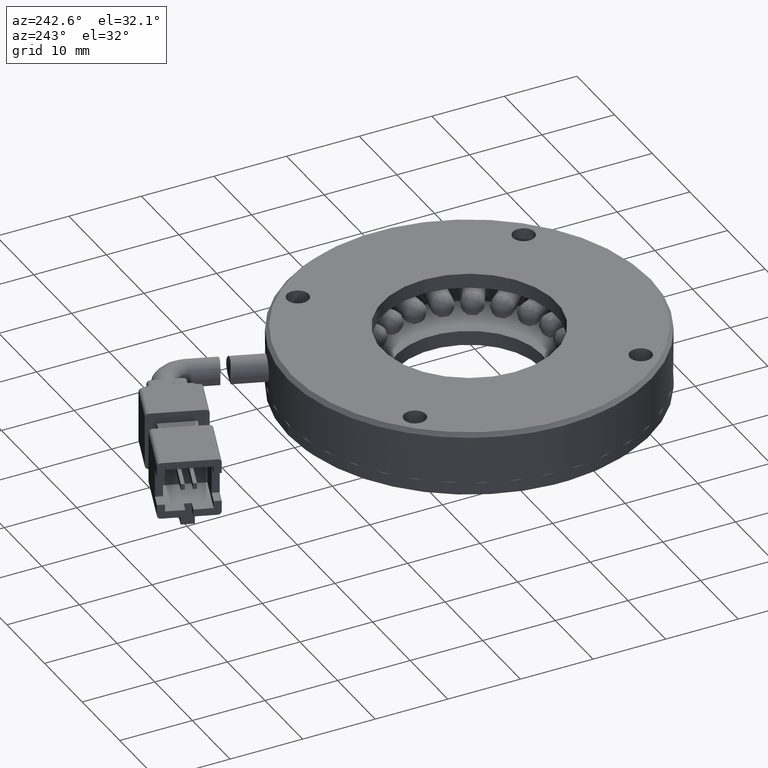
[diagram: clean part render]
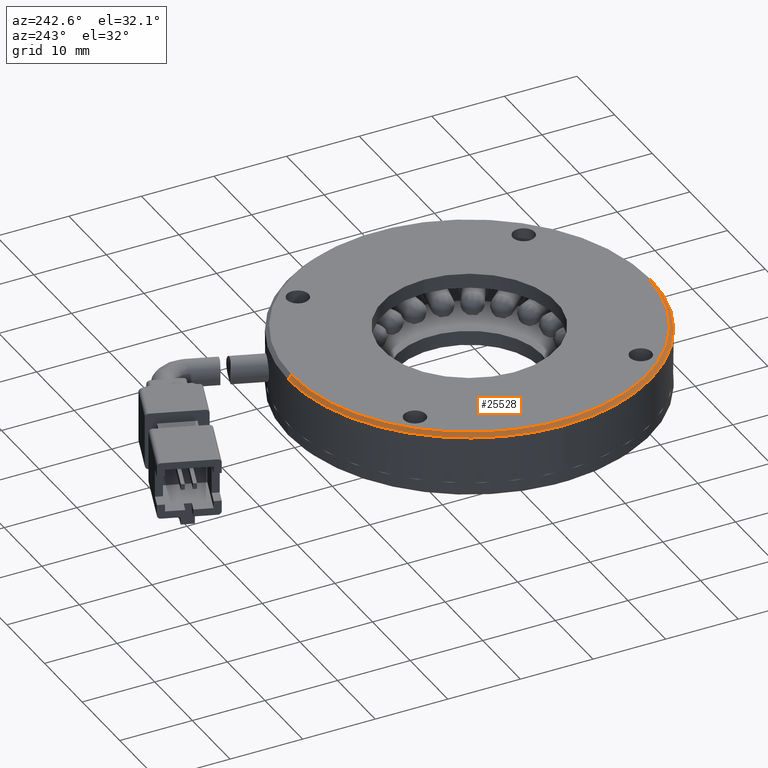
[diagram: same view with one face highlighted and labeled with its STEP entity id]
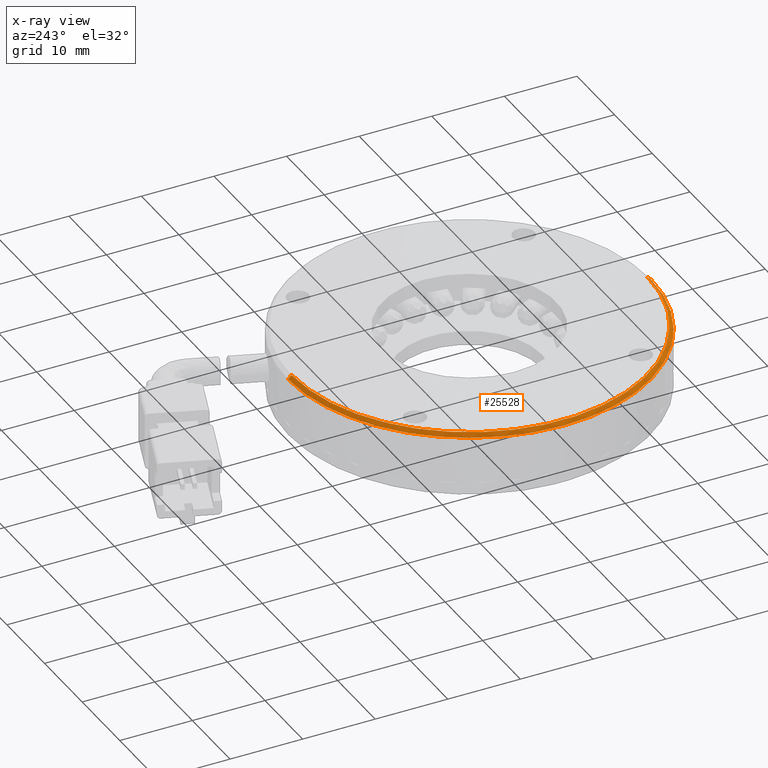
[diagram: x-ray of the same camera — body ghosted, the highlighted face saturated]
A machine part, auxiliary view. The second image highlights one B-rep face of the part: STEP entity #25528.
The next image is the same camera in x-ray: the body ghosted, the highlighted face saturated — about 0% of this face is hidden behind the body in this view.
In plain terms, the highlighted conical surface has half-angle 45 deg.
Its self-contained STEP definition (entity closure, byte-faithful):
#342 = EDGE_CURVE ( 'NONE', #14031, #12086, #19711, .T. ) ;
#834 = EDGE_CURVE ( 'NONE', #18501, #2540, #11335, .T. ) ;
#1226 = EDGE_CURVE ( 'NONE', #12086, #18501, #1285, .T. ) ;
#1285 = CIRCLE ( 'NONE', #18148, 25.00000000000002100 ) ;
#1556 = DIRECTION ( 'NONE',  ( -1.000000000000000000, 0.0000000000000000000, 0.0000000000000000000 ) ) ;
#2540 = VERTEX_POINT ( 'NONE', #6990 ) ;
#2828 = DIRECTION ( 'NONE',  ( 0.0000000000000000000, 0.0000000000000000000, 1.000000000000000000 ) ) ;
#2832 = VECTOR ( 'NONE', #16657, 999.9999999999998900 ) ;
#2860 = EDGE_LOOP ( 'NONE', ( #13419, #15814, #18814, #10582, #16345 ) ) ;
#4476 = CARTESIAN_POINT ( 'NONE',  ( -121.0083944312392800, -18.03927497453311400, 3.500000000000063100 ) ) ;
#4786 = EDGE_CURVE ( 'NONE', #11087, #14031, #17167, .T. ) ;
#5181 = CARTESIAN_POINT ( 'NONE',  ( -121.0083944312392800, -18.53927497453312900, 3.000000000000048800 ) ) ;
#6553 = CARTESIAN_POINT ( 'NONE',  ( -121.0083944312392800, 6.460725025466879300, 3.000000000000048800 ) ) ;
#6990 = CARTESIAN_POINT ( 'NONE',  ( -121.0083944312392800, -18.53927497453312900, 3.000000000000048800 ) ) ;
#8937 = CARTESIAN_POINT ( 'NONE',  ( -121.0083944312392800, 6.460725025466879300, 3.000000000000048800 ) ) ;
#8956 = CARTESIAN_POINT ( 'NONE',  ( -121.0083944312392800, 6.460725025466879300, 3.500000000000063100 ) ) ;
#9635 = CARTESIAN_POINT ( 'NONE',  ( -121.0083944312392800, 30.96072502546687100, 3.500000000000063100 ) ) ;
#10582 = ORIENTED_EDGE ( 'NONE', *, *, #1226, .T. ) ;
#10963 = DIRECTION ( 'NONE',  ( 0.0000000000000000000, -8.673617379884035500E-018, -1.000000000000000000 ) ) ;
#10984 = DIRECTION ( 'NONE',  ( 0.0000000000000000000, 1.000000000000000000, 0.0000000000000000000 ) ) ;
#11087 = VERTEX_POINT ( 'NONE', #4476 ) ;
#11335 = CIRCLE ( 'NONE', #12852, 25.00000000000002100 ) ;
#11739 = EDGE_CURVE ( 'NONE', #11087, #2540, #14910, .T. ) ;
#12086 = VERTEX_POINT ( 'NONE', #20581 ) ;
#12852 = AXIS2_PLACEMENT_3D ( 'NONE', #16399, #13855, #1556 ) ;
#13419 = ORIENTED_EDGE ( 'NONE', *, *, #11739, .F. ) ;
#13855 = DIRECTION ( 'NONE',  ( 0.0000000000000000000, 0.0000000000000000000, 1.000000000000000000 ) ) ;
#14031 = VERTEX_POINT ( 'NONE', #9635 ) ;
#14276 = VECTOR ( 'NONE', #19441, 999.9999999999998900 ) ;
#14910 = LINE ( 'NONE', #5181, #14276 ) ;
#15663 = CONICAL_SURFACE ( 'NONE', #18534, 25.00000000000000700, 0.7853981633974479500 ) ;
#15814 = ORIENTED_EDGE ( 'NONE', *, *, #4786, .T. ) ;
#16345 = ORIENTED_EDGE ( 'NONE', *, *, #834, .T. ) ;
#16399 = CARTESIAN_POINT ( 'NONE',  ( -121.0083944312392800, 6.460725025466879300, 3.000000000000048800 ) ) ;
#16657 = DIRECTION ( 'NONE',  ( 0.0000000000000000000, 0.7071067811865472400, -0.7071067811865479100 ) ) ;
#17167 = CIRCLE ( 'NONE', #20428, 24.49999999999999300 ) ;
#18148 = AXIS2_PLACEMENT_3D ( 'NONE', #6553, #2828, #18937 ) ;
#18218 = FACE_OUTER_BOUND ( 'NONE', #2860, .T. ) ;
#18501 = VERTEX_POINT ( 'NONE', #23306 ) ;
#18534 = AXIS2_PLACEMENT_3D ( 'NONE', #8937, #10963, #19186 ) ;
#18814 = ORIENTED_EDGE ( 'NONE', *, *, #342, .T. ) ;
#18937 = DIRECTION ( 'NONE',  ( -1.000000000000000000, 0.0000000000000000000, 0.0000000000000000000 ) ) ;
#19186 = DIRECTION ( 'NONE',  ( 0.0000000000000000000, 1.000000000000000000, -1.734723475976806500E-017 ) ) ;
#19441 = DIRECTION ( 'NONE',  ( 8.659560562354930400E-017, -0.7071067811865472400, -0.7071067811865479100 ) ) ;
#19711 = LINE ( 'NONE', #23639, #2832 ) ;
#20428 = AXIS2_PLACEMENT_3D ( 'NONE', #8956, #23226, #10984 ) ;
#20581 = CARTESIAN_POINT ( 'NONE',  ( -121.0083944312392800, 31.46072502546688900, 3.000000000000048800 ) ) ;
#23226 = DIRECTION ( 'NONE',  ( 0.0000000000000000000, -8.673617379884035500E-018, -1.000000000000000000 ) ) ;
#23306 = CARTESIAN_POINT ( 'NONE',  ( -146.0083944312393100, 6.460725025466879300, 3.000000000000048800 ) ) ;
#23639 = CARTESIAN_POINT ( 'NONE',  ( -121.0083944312392800, 31.46072502546688900, 3.000000000000048400 ) ) ;
#25528 = ADVANCED_FACE ( 'NONE', ( #18218 ), #15663, .T. ) ;